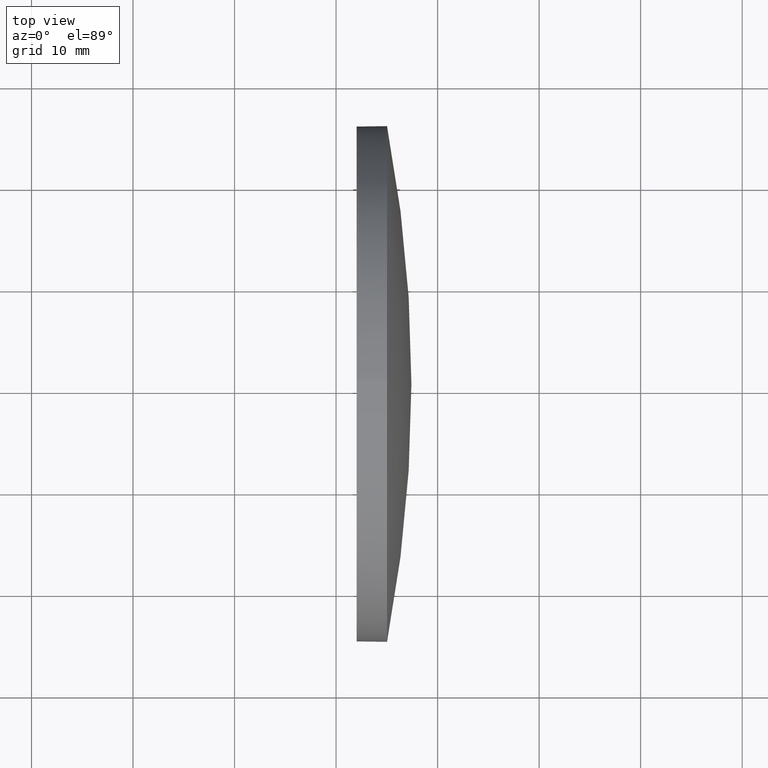
[diagram: clean part render]
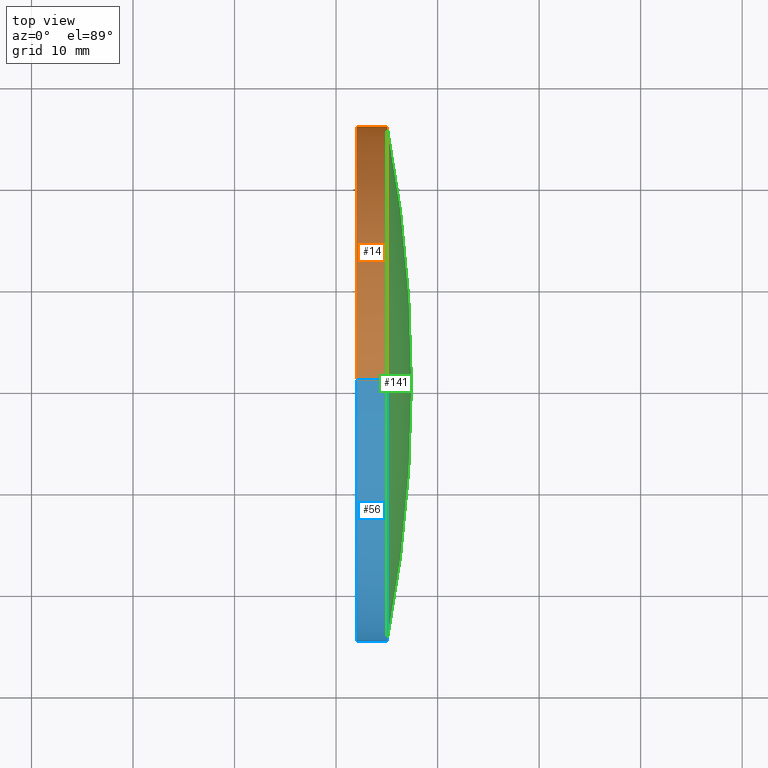
[diagram: same view with three faces highlighted in distinct colors, each labeled with its STEP entity id]
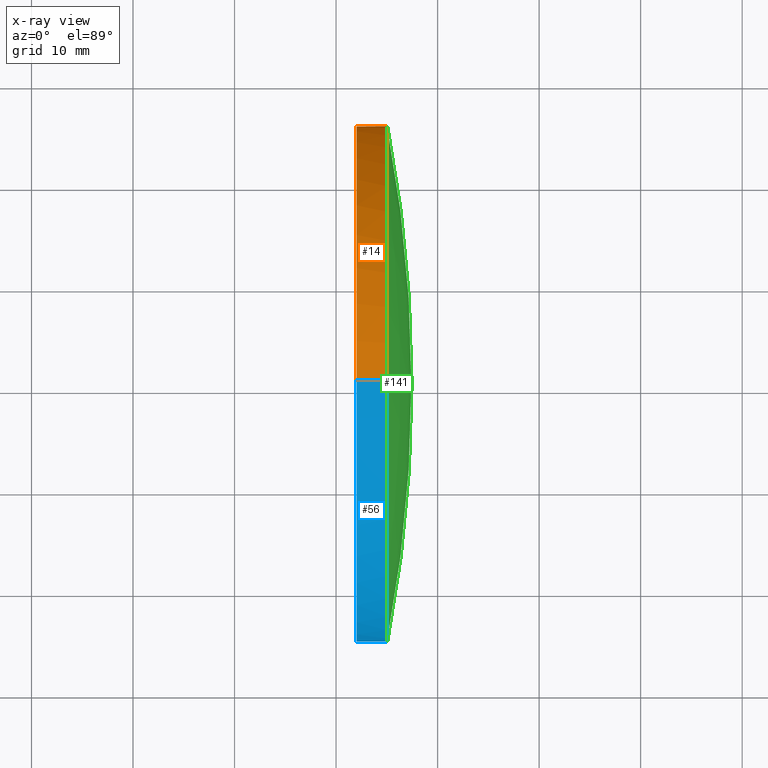
[diagram: x-ray of the same camera — body ghosted, the three highlighted faces saturated]
A machine part, top view with three faces highlighted in distinct colors.
The next image is the same camera in x-ray (body ghosted, the three faces saturated) — at least one of them is partly hidden behind the body in this view.
Their STEP definitions:

[orange] entity #14 — the highlighted cylindrical surface (partial cylindrical patch) has radius 25.4 mm, axis along (-1, -0, -0).
#4 = AXIS2_PLACEMENT_3D ( 'NONE', #45, #151, #137 ) ;
#12 = DIRECTION ( 'NONE',  ( 0.0000000000000000000, 0.0000000000000000000, 1.000000000000000000 ) ) ;
#14 = ADVANCED_FACE ( 'NONE', ( #176 ), #144, .T. ) ;
#18 = CIRCLE ( 'NONE', #84, 25.40000000000000600 ) ;
#20 = CARTESIAN_POINT ( 'NONE',  ( 220.3307464569769000, 130.4671098528243900, 0.0000000000000000000 ) ) ;
#21 = DIRECTION ( 'NONE',  ( 0.0000000000000000000, 0.0000000000000000000, 1.000000000000000000 ) ) ;
#22 = EDGE_CURVE ( 'NONE', #47, #122, #136, .T. ) ;
#25 = CARTESIAN_POINT ( 'NONE',  ( 232.0208200792423800, 130.4671098528243900, -25.40000000000000600 ) ) ;
#26 = VECTOR ( 'NONE', #88, 1000.000000000000000 ) ;
#38 = ORIENTED_EDGE ( 'NONE', *, *, #72, .T. ) ;
#44 = CARTESIAN_POINT ( 'NONE',  ( 235.0208200792424100, 155.8671098528243700, 0.0000000000000000000 ) ) ;
#45 = CARTESIAN_POINT ( 'NONE',  ( 235.0208200792423800, 130.4671098528243900, 0.0000000000000000000 ) ) ;
#47 = VERTEX_POINT ( 'NONE', #118 ) ;
#52 = ORIENTED_EDGE ( 'NONE', *, *, #65, .T. ) ;
#63 = VERTEX_POINT ( 'NONE', #119 ) ;
#65 = EDGE_CURVE ( 'NONE', #73, #66, #133, .T. ) ;
#66 = VERTEX_POINT ( 'NONE', #44 ) ;
#67 = CIRCLE ( 'NONE', #182, 25.40000000000000600 ) ;
#69 = CARTESIAN_POINT ( 'NONE',  ( 235.0208200792423800, 130.4671098528243900, 25.40000000000000600 ) ) ;
#72 = EDGE_CURVE ( 'NONE', #66, #47, #18, .T. ) ;
#73 = VERTEX_POINT ( 'NONE', #69 ) ;
#79 = DIRECTION ( 'NONE',  ( 0.0000000000000000000, 0.0000000000000000000, 1.000000000000000000 ) ) ;
#84 = AXIS2_PLACEMENT_3D ( 'NONE', #121, #138, #79 ) ;
#86 = ORIENTED_EDGE ( 'NONE', *, *, #98, .F. ) ;
#88 = DIRECTION ( 'NONE',  ( -1.000000000000000000, -0.0000000000000000000, -0.0000000000000000000 ) ) ;
#92 = CARTESIAN_POINT ( 'NONE',  ( 232.0208200792423800, 130.4671098528243900, 0.0000000000000000000 ) ) ;
#97 = EDGE_LOOP ( 'NONE', ( #38, #127, #170, #86, #52 ) ) ;
#98 = EDGE_CURVE ( 'NONE', #73, #63, #165, .T. ) ;
#118 = CARTESIAN_POINT ( 'NONE',  ( 235.0208200792423800, 130.4671098528243900, -25.40000000000000600 ) ) ;
#119 = CARTESIAN_POINT ( 'NONE',  ( 232.0208200792423800, 130.4671098528243900, 25.40000000000000600 ) ) ;
#121 = CARTESIAN_POINT ( 'NONE',  ( 235.0208200792423800, 130.4671098528243900, 0.0000000000000000000 ) ) ;
#122 = VERTEX_POINT ( 'NONE', #25 ) ;
#123 = DIRECTION ( 'NONE',  ( -1.000000000000000000, -0.0000000000000000000, -0.0000000000000000000 ) ) ;
#127 = ORIENTED_EDGE ( 'NONE', *, *, #22, .T. ) ;
#133 = CIRCLE ( 'NONE', #4, 25.40000000000000600 ) ;
#134 = DIRECTION ( 'NONE',  ( -1.000000000000000000, -0.0000000000000000000, -0.0000000000000000000 ) ) ;
#136 = LINE ( 'NONE', #179, #26 ) ;
#137 = DIRECTION ( 'NONE',  ( 0.0000000000000000000, 0.0000000000000000000, 1.000000000000000000 ) ) ;
#138 = DIRECTION ( 'NONE',  ( -1.000000000000000000, -0.0000000000000000000, -0.0000000000000000000 ) ) ;
#143 = EDGE_CURVE ( 'NONE', #63, #122, #67, .T. ) ;
#144 = CYLINDRICAL_SURFACE ( 'NONE', #163, 25.40000000000000600 ) ;
#151 = DIRECTION ( 'NONE',  ( -1.000000000000000000, -0.0000000000000000000, -0.0000000000000000000 ) ) ;
#162 = VECTOR ( 'NONE', #123, 1000.000000000000000 ) ;
#163 = AXIS2_PLACEMENT_3D ( 'NONE', #20, #134, #21 ) ;
#165 = LINE ( 'NONE', #166, #162 ) ;
#166 = CARTESIAN_POINT ( 'NONE',  ( 220.3307464569769000, 130.4671098528243900, 25.40000000000000600 ) ) ;
#169 = DIRECTION ( 'NONE',  ( -1.000000000000000000, -0.0000000000000000000, -0.0000000000000000000 ) ) ;
#170 = ORIENTED_EDGE ( 'NONE', *, *, #143, .F. ) ;
#176 = FACE_OUTER_BOUND ( 'NONE', #97, .T. ) ;
#179 = CARTESIAN_POINT ( 'NONE',  ( 220.3307464569769000, 130.4671098528243900, -25.40000000000000600 ) ) ;
#182 = AXIS2_PLACEMENT_3D ( 'NONE', #92, #169, #12 ) ;

[blue] entity #56 — the highlighted cylindrical surface (partial cylindrical patch) has radius 25.4 mm, axis along (-1, -0, -0).
#7 = VERTEX_POINT ( 'NONE', #178 ) ;
#10 = DIRECTION ( 'NONE',  ( -1.000000000000000000, -0.0000000000000000000, -0.0000000000000000000 ) ) ;
#13 = AXIS2_PLACEMENT_3D ( 'NONE', #140, #10, #155 ) ;
#15 = ORIENTED_EDGE ( 'NONE', *, *, #22, .F. ) ;
#16 = CIRCLE ( 'NONE', #172, 25.40000000000000600 ) ;
#19 = EDGE_LOOP ( 'NONE', ( #15, #35, #175, #57, #186 ) ) ;
#22 = EDGE_CURVE ( 'NONE', #47, #122, #136, .T. ) ;
#24 = DIRECTION ( 'NONE',  ( 0.0000000000000000000, 0.0000000000000000000, 1.000000000000000000 ) ) ;
#25 = CARTESIAN_POINT ( 'NONE',  ( 232.0208200792423800, 130.4671098528243900, -25.40000000000000600 ) ) ;
#26 = VECTOR ( 'NONE', #88, 1000.000000000000000 ) ;
#32 = CYLINDRICAL_SURFACE ( 'NONE', #55, 25.40000000000000600 ) ;
#35 = ORIENTED_EDGE ( 'NONE', *, *, #82, .T. ) ;
#47 = VERTEX_POINT ( 'NONE', #118 ) ;
#54 = CIRCLE ( 'NONE', #13, 25.40000000000000600 ) ;
#55 = AXIS2_PLACEMENT_3D ( 'NONE', #103, #167, #78 ) ;
#56 = ADVANCED_FACE ( 'NONE', ( #101 ), #32, .T. ) ;
#57 = ORIENTED_EDGE ( 'NONE', *, *, #98, .T. ) ;
#59 = CARTESIAN_POINT ( 'NONE',  ( 232.0208200792423800, 130.4671098528243900, 0.0000000000000000000 ) ) ;
#63 = VERTEX_POINT ( 'NONE', #119 ) ;
#69 = CARTESIAN_POINT ( 'NONE',  ( 235.0208200792423800, 130.4671098528243900, 25.40000000000000600 ) ) ;
#73 = VERTEX_POINT ( 'NONE', #69 ) ;
#78 = DIRECTION ( 'NONE',  ( 0.0000000000000000000, 0.0000000000000000000, 1.000000000000000000 ) ) ;
#82 = EDGE_CURVE ( 'NONE', #47, #7, #16, .T. ) ;
#87 = EDGE_CURVE ( 'NONE', #7, #73, #54, .T. ) ;
#88 = DIRECTION ( 'NONE',  ( -1.000000000000000000, -0.0000000000000000000, -0.0000000000000000000 ) ) ;
#98 = EDGE_CURVE ( 'NONE', #73, #63, #165, .T. ) ;
#101 = FACE_OUTER_BOUND ( 'NONE', #19, .T. ) ;
#103 = CARTESIAN_POINT ( 'NONE',  ( 220.3307464569769000, 130.4671098528243900, 0.0000000000000000000 ) ) ;
#105 = DIRECTION ( 'NONE',  ( 0.0000000000000000000, 0.0000000000000000000, 1.000000000000000000 ) ) ;
#108 = EDGE_CURVE ( 'NONE', #122, #63, #116, .T. ) ;
#116 = CIRCLE ( 'NONE', #177, 25.40000000000000600 ) ;
#118 = CARTESIAN_POINT ( 'NONE',  ( 235.0208200792423800, 130.4671098528243900, -25.40000000000000600 ) ) ;
#119 = CARTESIAN_POINT ( 'NONE',  ( 232.0208200792423800, 130.4671098528243900, 25.40000000000000600 ) ) ;
#122 = VERTEX_POINT ( 'NONE', #25 ) ;
#123 = DIRECTION ( 'NONE',  ( -1.000000000000000000, -0.0000000000000000000, -0.0000000000000000000 ) ) ;
#124 = DIRECTION ( 'NONE',  ( -1.000000000000000000, -0.0000000000000000000, -0.0000000000000000000 ) ) ;
#136 = LINE ( 'NONE', #179, #26 ) ;
#139 = CARTESIAN_POINT ( 'NONE',  ( 235.0208200792423800, 130.4671098528243900, 0.0000000000000000000 ) ) ;
#140 = CARTESIAN_POINT ( 'NONE',  ( 235.0208200792423800, 130.4671098528243900, 0.0000000000000000000 ) ) ;
#155 = DIRECTION ( 'NONE',  ( 0.0000000000000000000, 0.0000000000000000000, 1.000000000000000000 ) ) ;
#157 = DIRECTION ( 'NONE',  ( -1.000000000000000000, -0.0000000000000000000, -0.0000000000000000000 ) ) ;
#162 = VECTOR ( 'NONE', #123, 1000.000000000000000 ) ;
#165 = LINE ( 'NONE', #166, #162 ) ;
#166 = CARTESIAN_POINT ( 'NONE',  ( 220.3307464569769000, 130.4671098528243900, 25.40000000000000600 ) ) ;
#167 = DIRECTION ( 'NONE',  ( -1.000000000000000000, -0.0000000000000000000, -0.0000000000000000000 ) ) ;
#172 = AXIS2_PLACEMENT_3D ( 'NONE', #139, #157, #24 ) ;
#175 = ORIENTED_EDGE ( 'NONE', *, *, #87, .T. ) ;
#177 = AXIS2_PLACEMENT_3D ( 'NONE', #59, #124, #105 ) ;
#178 = CARTESIAN_POINT ( 'NONE',  ( 235.0208200792424100, 105.0671098528243300, -3.110602869834275700E-015 ) ) ;
#179 = CARTESIAN_POINT ( 'NONE',  ( 220.3307464569769000, 130.4671098528243900, -25.40000000000000600 ) ) ;
#186 = ORIENTED_EDGE ( 'NONE', *, *, #108, .F. ) ;

[green] entity #141 — the highlighted spherical surface has radius 135.608 mm.
#1 = EDGE_LOOP ( 'NONE', ( #43, #149, #3, #76 ) ) ;
#2 = AXIS2_PLACEMENT_3D ( 'NONE', #27, #71, #48 ) ;
#3 = ORIENTED_EDGE ( 'NONE', *, *, #65, .F. ) ;
#4 = AXIS2_PLACEMENT_3D ( 'NONE', #45, #151, #137 ) ;
#7 = VERTEX_POINT ( 'NONE', #178 ) ;
#8 = CARTESIAN_POINT ( 'NONE',  ( 101.8124867459092400, 130.4671098528243100, 0.0000000000000000000 ) ) ;
#9 = DIRECTION ( 'NONE',  ( -0.0000000000000000000, 0.0000000000000000000, -1.000000000000000000 ) ) ;
#10 = DIRECTION ( 'NONE',  ( -1.000000000000000000, -0.0000000000000000000, -0.0000000000000000000 ) ) ;
#11 = CIRCLE ( 'NONE', #2, 135.6083333333331800 ) ;
#13 = AXIS2_PLACEMENT_3D ( 'NONE', #140, #10, #155 ) ;
#27 = CARTESIAN_POINT ( 'NONE',  ( 101.8124867459092400, 130.4671098528243100, 0.0000000000000000000 ) ) ;
#36 = SPHERICAL_SURFACE ( 'NONE', #49, 135.6083333333331800 ) ;
#43 = ORIENTED_EDGE ( 'NONE', *, *, #74, .F. ) ;
#44 = CARTESIAN_POINT ( 'NONE',  ( 235.0208200792424100, 155.8671098528243700, 0.0000000000000000000 ) ) ;
#45 = CARTESIAN_POINT ( 'NONE',  ( 235.0208200792423800, 130.4671098528243900, 0.0000000000000000000 ) ) ;
#48 = DIRECTION ( 'NONE',  ( 1.000000000000000000, 0.0000000000000000000, 0.0000000000000000000 ) ) ;
#49 = AXIS2_PLACEMENT_3D ( 'NONE', #8, #9, #183 ) ;
#54 = CIRCLE ( 'NONE', #13, 25.40000000000000600 ) ;
#65 = EDGE_CURVE ( 'NONE', #73, #66, #133, .T. ) ;
#66 = VERTEX_POINT ( 'NONE', #44 ) ;
#69 = CARTESIAN_POINT ( 'NONE',  ( 235.0208200792423800, 130.4671098528243900, 25.40000000000000600 ) ) ;
#70 = CARTESIAN_POINT ( 'NONE',  ( 237.4208200792424200, 130.4671098528243100, 0.0000000000000000000 ) ) ;
#71 = DIRECTION ( 'NONE',  ( -0.0000000000000000000, 0.0000000000000000000, 1.000000000000000000 ) ) ;
#73 = VERTEX_POINT ( 'NONE', #69 ) ;
#74 = EDGE_CURVE ( 'NONE', #112, #7, #89, .T. ) ;
#76 = ORIENTED_EDGE ( 'NONE', *, *, #87, .F. ) ;
#81 = DIRECTION ( 'NONE',  ( 0.0000000000000000000, 1.000000000000000000, 1.224646799147353000E-016 ) ) ;
#87 = EDGE_CURVE ( 'NONE', #7, #73, #54, .T. ) ;
#89 = CIRCLE ( 'NONE', #174, 135.6083333333331800 ) ;
#106 = DIRECTION ( 'NONE',  ( 0.0000000000000000000, 1.224646799147353200E-016, -1.000000000000000000 ) ) ;
#112 = VERTEX_POINT ( 'NONE', #70 ) ;
#125 = FACE_OUTER_BOUND ( 'NONE', #1, .T. ) ;
#131 = EDGE_CURVE ( 'NONE', #112, #66, #11, .T. ) ;
#133 = CIRCLE ( 'NONE', #4, 25.40000000000000600 ) ;
#137 = DIRECTION ( 'NONE',  ( 0.0000000000000000000, 0.0000000000000000000, 1.000000000000000000 ) ) ;
#140 = CARTESIAN_POINT ( 'NONE',  ( 235.0208200792423800, 130.4671098528243900, 0.0000000000000000000 ) ) ;
#141 = ADVANCED_FACE ( 'NONE', ( #125 ), #36, .T. ) ;
#149 = ORIENTED_EDGE ( 'NONE', *, *, #131, .T. ) ;
#151 = DIRECTION ( 'NONE',  ( -1.000000000000000000, -0.0000000000000000000, -0.0000000000000000000 ) ) ;
#155 = DIRECTION ( 'NONE',  ( 0.0000000000000000000, 0.0000000000000000000, 1.000000000000000000 ) ) ;
#174 = AXIS2_PLACEMENT_3D ( 'NONE', #185, #106, #81 ) ;
#178 = CARTESIAN_POINT ( 'NONE',  ( 235.0208200792424100, 105.0671098528243300, -3.110602869834275700E-015 ) ) ;
#183 = DIRECTION ( 'NONE',  ( 0.0000000000000000000, 1.000000000000000000, 0.0000000000000000000 ) ) ;
#185 = CARTESIAN_POINT ( 'NONE',  ( 101.8124867459092400, 130.4671098528243100, 0.0000000000000000000 ) ) ;